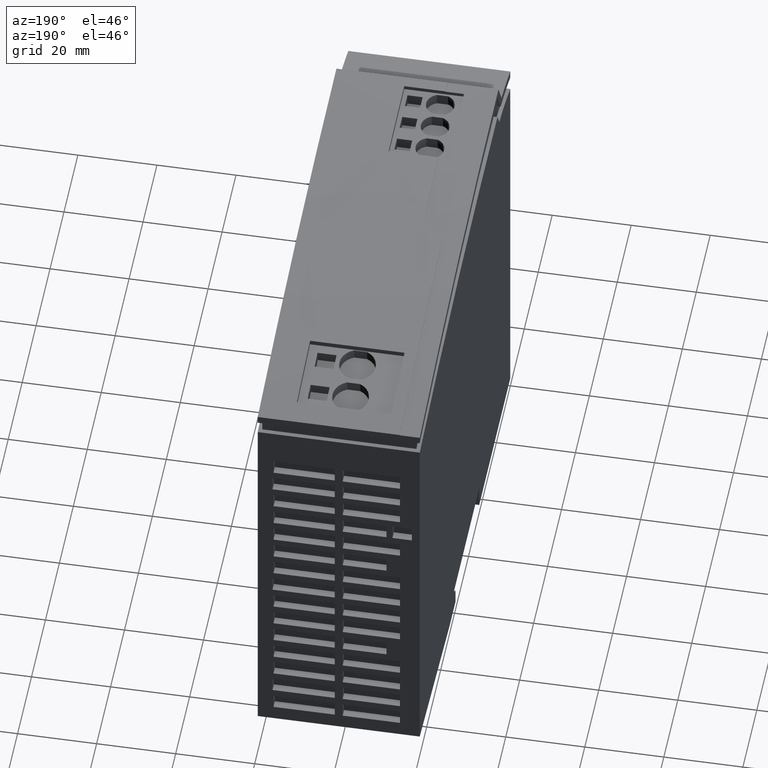
[diagram: clean part render]
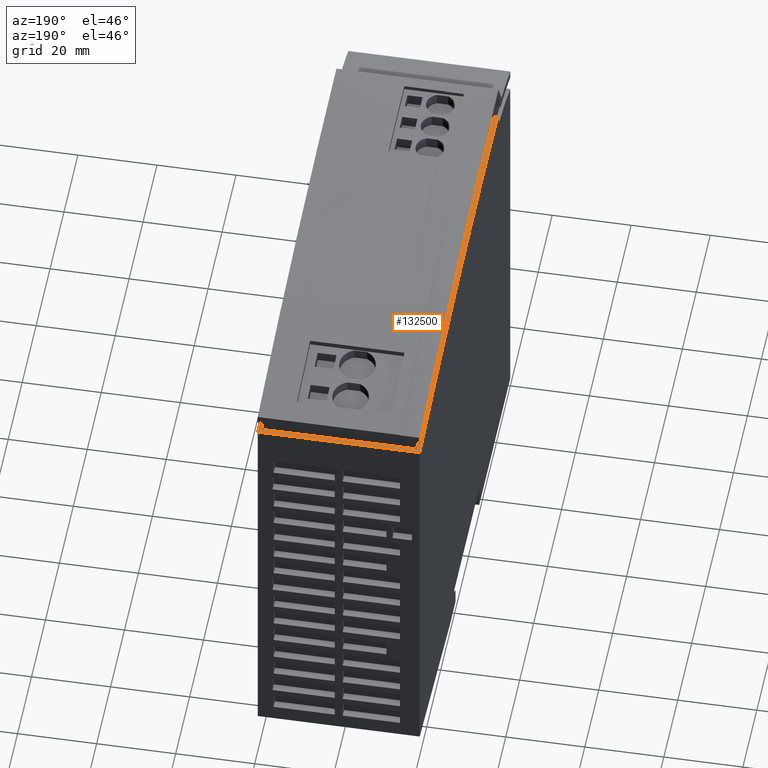
[diagram: same view with one face highlighted and labeled with its STEP entity id]
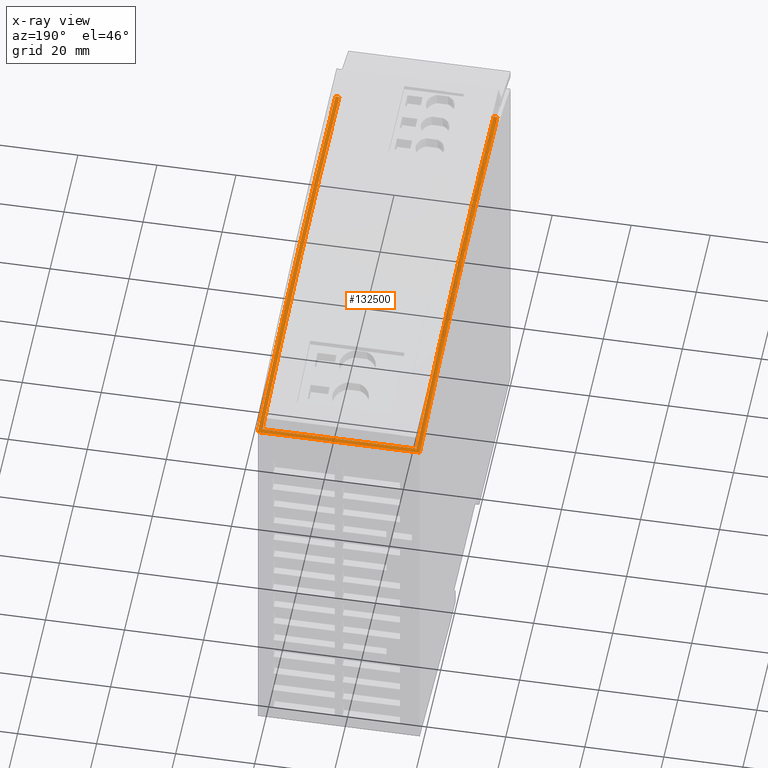
[diagram: x-ray of the same camera — body ghosted, the highlighted face saturated]
A machine part, auxiliary view. The second image highlights one B-rep face of the part: STEP entity #132500.
The next image is the same camera in x-ray: the body ghosted, the highlighted face saturated — about 0% of this face is hidden behind the body in this view.
In plain terms, the highlighted cylindrical surface (partial cylindrical patch) has radius 655.627 mm, axis along (-1, 0, 0).
Its self-contained STEP definition (entity closure, byte-faithful):
#2170=CARTESIAN_POINT('',(106.390000000037,18.3700000000255,-46.5));
#2180=VERTEX_POINT('',#2170);
#2210=CARTESIAN_POINT('',(-548.999999999983,36.0000000000007,-46.5));
#2220=DIRECTION('',(0.,0.,1.));
#2230=DIRECTION('',(1.,0.,0.));
#2240=AXIS2_PLACEMENT_3D('',#2210,#2220,#2230);
#2250=CIRCLE('',#2240,655.627080740283);
#2260=CARTESIAN_POINT('',(99.8535034967812,130.,-46.5));
#2270=VERTEX_POINT('',#2260);
#2280=EDGE_CURVE('',#2180,#2270,#2250,.T.);
#91970=CARTESIAN_POINT('',(99.8535034967811,130.,-41.0000000000083));
#91980=DIRECTION('',(0.,0.,1.));
#91990=VECTOR('',#91980,1.);
#92000=LINE('',#91970,#91990);
#92010=CARTESIAN_POINT('',(99.8535034967811,130.,-5.50000000000001));
#92020=VERTEX_POINT('',#92010);
#92030=EDGE_CURVE('',#2270,#92020,#92000,.T.);
#131920=CARTESIAN_POINT('',(-548.999999999983,36.0000000000007,
-41.0000000000083));
#131930=DIRECTION('',(0.,0.,1.));
#131940=DIRECTION('',(1.,0.,0.));
#131950=AXIS2_PLACEMENT_3D('',#131920,#131930,#131940);
#131960=CYLINDRICAL_SURFACE('',#131950,655.627080740283);
#131970=ORIENTED_EDGE('',*,*,#2280,.T.);
#131980=CARTESIAN_POINT('',(106.390000000037,18.3700000000255,
-47.0000000000083));
#131990=DIRECTION('',(0.,0.,-1.));
#132000=VECTOR('',#131990,1.);
#132010=LINE('',#131980,#132000);
#132020=CARTESIAN_POINT('',(106.390000000037,18.3700000000255,-45.5));
#132030=VERTEX_POINT('',#132020);
#132040=EDGE_CURVE('',#132030,#2180,#132010,.T.);
#132050=ORIENTED_EDGE('',*,*,#132040,.T.);
#132060=CARTESIAN_POINT('',(-548.999999999983,36.0000000000007,-45.5));
#132070=DIRECTION('',(0.,0.,1.));
#132080=DIRECTION('',(1.,0.,0.));
#132090=AXIS2_PLACEMENT_3D('',#132060,#132070,#132080);
#132100=CIRCLE('',#132090,655.627080740283);
#132110=CARTESIAN_POINT('',(99.9975878229806,129.,-45.5));
#132120=VERTEX_POINT('',#132110);
#132130=EDGE_CURVE('',#132030,#132120,#132100,.T.);
#132140=ORIENTED_EDGE('',*,*,#132130,.F.);
#132150=CARTESIAN_POINT('',(99.9975878229806,129.,-41.0000000000083));
#132160=DIRECTION('',(0.,0.,1.));
#132170=VECTOR('',#132160,1.);
#132180=LINE('',#132150,#132170);
#132190=CARTESIAN_POINT('',(99.9975878229806,129.,-6.50000000000001));
#132200=VERTEX_POINT('',#132190);
#132210=EDGE_CURVE('',#132120,#132200,#132180,.T.);
#132220=ORIENTED_EDGE('',*,*,#132210,.F.);
#132230=CARTESIAN_POINT('',(-548.999999999983,36.0000000000007,
-6.50000000000001));
#132240=DIRECTION('',(0.,0.,1.));
#132250=DIRECTION('',(1.,0.,0.));
#132260=AXIS2_PLACEMENT_3D('',#132230,#132240,#132250);
#132270=CIRCLE('',#132260,655.627080740283);
#132280=CARTESIAN_POINT('',(106.390000000037,18.3700000000244,
-6.50000000000001));
#132290=VERTEX_POINT('',#132280);
#132300=EDGE_CURVE('',#132290,#132200,#132270,.T.);
#132310=ORIENTED_EDGE('',*,*,#132300,.T.);
#132320=CARTESIAN_POINT('',(106.390000000037,18.3700000000255,
-41.0000000000083));
#132330=DIRECTION('',(0.,0.,1.));
#132340=VECTOR('',#132330,1.);
#132350=LINE('',#132320,#132340);
#132360=CARTESIAN_POINT('',(106.390000000037,18.3700000000255,
-5.50000000000001));
#132370=VERTEX_POINT('',#132360);
#132380=EDGE_CURVE('',#132290,#132370,#132350,.T.);
#132390=ORIENTED_EDGE('',*,*,#132380,.F.);
#132400=CARTESIAN_POINT('',(-548.999999999983,36.0000000000007,
-5.50000000000001));
#132410=DIRECTION('',(0.,0.,1.));
#132420=DIRECTION('',(1.,0.,0.));
#132430=AXIS2_PLACEMENT_3D('',#132400,#132410,#132420);
#132440=CIRCLE('',#132430,655.627080740283);
#132450=EDGE_CURVE('',#132370,#92020,#132440,.T.);
#132460=ORIENTED_EDGE('',*,*,#132450,.F.);
#132470=ORIENTED_EDGE('',*,*,#92030,.T.);
#132480=EDGE_LOOP('',(#132470,#132460,#132390,#132310,#132220,#132140,
#132050,#131970));
#132490=FACE_OUTER_BOUND('',#132480,.T.);
#132500=ADVANCED_FACE('',(#132490),#131960,.T.);